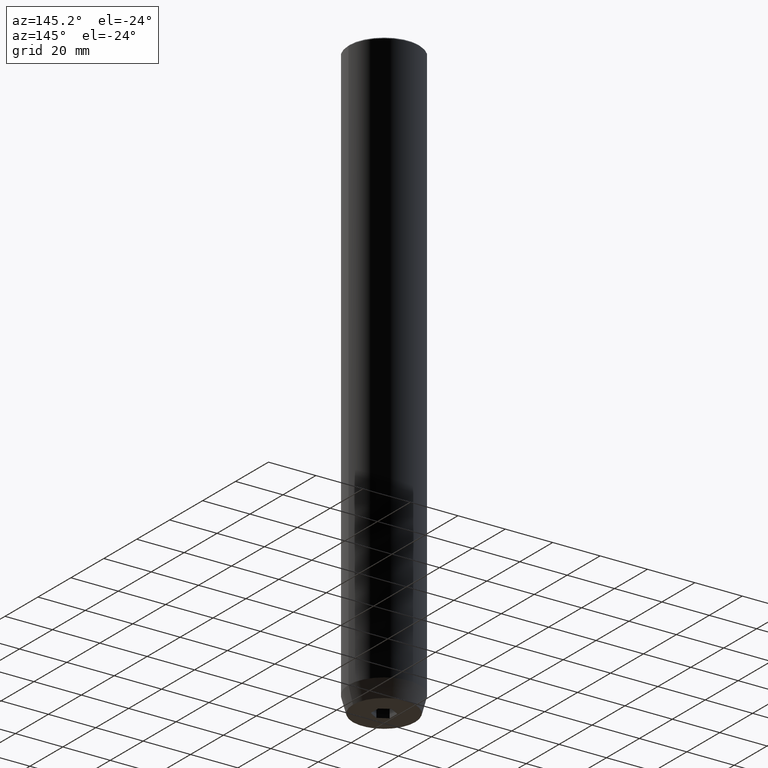
[diagram: clean part render]
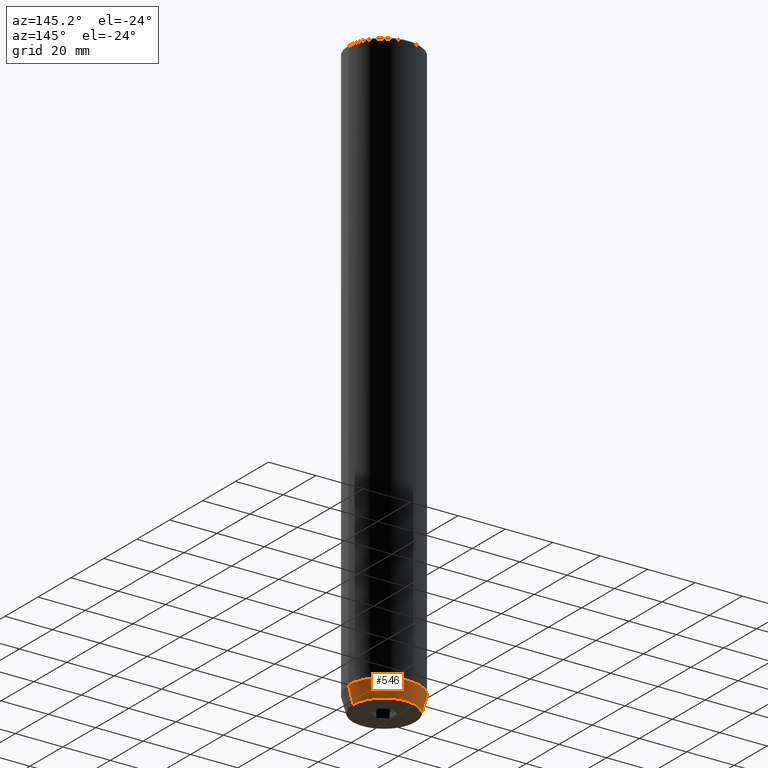
[diagram: same view with one face highlighted and labeled with its STEP entity id]
A machine part, auxiliary view. The second image highlights one B-rep face of the part: STEP entity #546.
In plain terms, the highlighted conical surface has half-angle 15 deg.
Its self-contained STEP definition (entity closure, byte-faithful):
#62 = ORIENTED_EDGE ( 'NONE', *, *, #119, .F. ) ;
#63 = CARTESIAN_POINT ( 'NONE',  ( 15.00000000000000000, 0.000000000000000000, -243.0000000000000000 ) ) ;
#90 = ORIENTED_EDGE ( 'NONE', *, *, #507, .T. ) ;
#96 = VECTOR ( 'NONE', #399, 1000.000000000000000 ) ;
#114 = DIRECTION ( 'NONE',  ( 1.000000000000000000, 0.000000000000000000, 0.000000000000000000 ) ) ;
#119 = EDGE_CURVE ( 'NONE', #226, #381, #362, .T. ) ;
#125 = AXIS2_PLACEMENT_3D ( 'NONE', #318, #365, #114 ) ;
#144 = DIRECTION ( 'NONE',  ( -0.2588190451025222383, 3.169619151431782814E-17, 0.9659258262890678681 ) ) ;
#197 = CARTESIAN_POINT ( 'NONE',  ( 13.12435565298212659, 0.000000000000000000, -250.0000000000000000 ) ) ;
#213 = CARTESIAN_POINT ( 'NONE',  ( 15.00000000000000000, 0.000000000000000000, -243.0000000000000000 ) ) ;
#226 = VERTEX_POINT ( 'NONE', #63 ) ;
#280 = EDGE_CURVE ( 'NONE', #584, #226, #303, .T. ) ;
#303 = LINE ( 'NONE', #213, #96 ) ;
#318 = CARTESIAN_POINT ( 'NONE',  ( 0.000000000000000000, 0.000000000000000000, -250.0000000000000000 ) ) ;
#340 = FACE_OUTER_BOUND ( 'NONE', #413, .T. ) ;
#362 = CIRCLE ( 'NONE', #600, 15.00000000000000000 ) ;
#365 = DIRECTION ( 'NONE',  ( -0.000000000000000000, -0.000000000000000000, 1.000000000000000000 ) ) ;
#381 = VERTEX_POINT ( 'NONE', #623 ) ;
#386 = CARTESIAN_POINT ( 'NONE',  ( 0.000000000000000000, 0.000000000000000000, -243.0000000000000000 ) ) ;
#399 = DIRECTION ( 'NONE',  ( 0.2588190451025222383, 0.000000000000000000, 0.9659258262890678681 ) ) ;
#400 = ORIENTED_EDGE ( 'NONE', *, *, #412, .T. ) ;
#407 = CIRCLE ( 'NONE', #125, 13.12435565298212659 ) ;
#412 = EDGE_CURVE ( 'NONE', #584, #577, #407, .T. ) ;
#413 = EDGE_LOOP ( 'NONE', ( #400, #90, #62, #638 ) ) ;
#431 = LINE ( 'NONE', #488, #456 ) ;
#456 = VECTOR ( 'NONE', #144, 1000.000000000000000 ) ;
#488 = CARTESIAN_POINT ( 'NONE',  ( -15.00000000000000000, 1.836970198721029589E-15, -243.0000000000000000 ) ) ;
#492 = CARTESIAN_POINT ( 'NONE',  ( 0.000000000000000000, 0.000000000000000000, -243.0000000000000000 ) ) ;
#507 = EDGE_CURVE ( 'NONE', #577, #381, #431, .T. ) ;
#537 = CARTESIAN_POINT ( 'NONE',  ( -13.12435565298212659, 1.722120106425316494E-15, -250.0000000000000000 ) ) ;
#546 = ADVANCED_FACE ( 'NONE', ( #340 ), #626, .T. ) ;
#560 = DIRECTION ( 'NONE',  ( 1.000000000000000000, 0.000000000000000000, 0.000000000000000000 ) ) ;
#577 = VERTEX_POINT ( 'NONE', #537 ) ;
#584 = VERTEX_POINT ( 'NONE', #197 ) ;
#591 = DIRECTION ( 'NONE',  ( 1.000000000000000000, 0.000000000000000000, 0.000000000000000000 ) ) ;
#595 = AXIS2_PLACEMENT_3D ( 'NONE', #386, #633, #591 ) ;
#600 = AXIS2_PLACEMENT_3D ( 'NONE', #492, #634, #560 ) ;
#623 = CARTESIAN_POINT ( 'NONE',  ( -15.00000000000000000, 1.836970198721029589E-15, -243.0000000000000000 ) ) ;
#626 = CONICAL_SURFACE ( 'NONE', #595, 15.00000000000000000, 0.2617993877991509621 ) ;
#633 = DIRECTION ( 'NONE',  ( -0.000000000000000000, -0.000000000000000000, 1.000000000000000000 ) ) ;
#634 = DIRECTION ( 'NONE',  ( -0.000000000000000000, -0.000000000000000000, 1.000000000000000000 ) ) ;
#638 = ORIENTED_EDGE ( 'NONE', *, *, #280, .F. ) ;